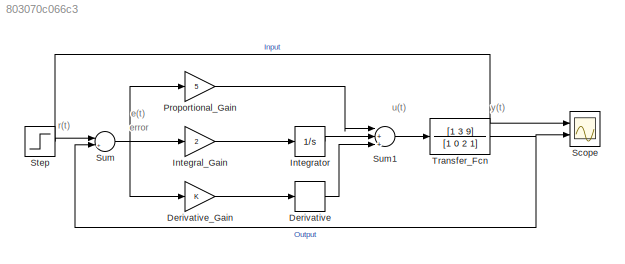
MODEL slx_803070c066c3
KIND model
BLOCK [Derivative] Derivative
BLOCK [Gain] Derivative_Gain
  OutDataTypeStr = Inherit: Inherit via internal rule
  ParamDataTypeStr = Inherit: Inherit via internal rule
  SaturateOnIntegerOverflow = off
BLOCK [Gain] Integral_Gain
  Gain = 2
  OutDataTypeStr = Inherit: Inherit via internal rule
  ParamDataTypeStr = Inherit: Inherit via internal rule
  SaturateOnIntegerOverflow = off
BLOCK [Integrator] Integrator
  Ports = [1, 1]
BLOCK [Gain] Proportional_Gain
  Gain = 5
  OutDataTypeStr = Inherit: Inherit via internal rule
  ParamDataTypeStr = Inherit: Inherit via internal rule
  SaturateOnIntegerOverflow = off
BLOCK [Scope] Scope
  DataFormat = StructureWithTime
  Floating = off
  LegendLocations = 0.91552     0.91992    0.062883    0.028319\n0.88407     0.45334    0.069018    0.028319
  LimitDataPoints = off
  NumInputPorts = 2
  Ports = [2]
  SampleTime = 0
  SaveName = Data
  SaveToWorkspace = on
  ShowLegends = on
  TimeRange = 30
  YMax = 1.2~1.2
  YMin = -0.2~-0.2
  ZoomMode = yonly
BLOCK [Step] Step
  SampleTime = 0
BLOCK [Sum] Sum
  InputSameDT = off
  Inputs = |+-
  OutDataTypeStr = Inherit: Inherit via internal rule
  Ports = [2, 1]
  SaturateOnIntegerOverflow = off
BLOCK [Sum] Sum1
  InputSameDT = off
  Inputs = |+++
  OutDataTypeStr = Inherit: Inherit via internal rule
  Ports = [3, 1]
  SaturateOnIntegerOverflow = off
BLOCK [TransferFcn] Transfer_Fcn
  Denominator = [1 0 2 1]
  Numerator = [1 3 9]
ANNOTATION (root): e(t)
ANNOTATION (root): error
ANNOTATION (root): r(t)
ANNOTATION (root): u(t)
ANNOTATION (root): y(t)
LINE Derivative:1 -> Sum1:3
LINE Derivative_Gain:1 -> Derivative:1
LINE Integral_Gain:1 -> Integrator:1
LINE Integrator:1 -> Sum1:2
LINE Proportional_Gain:1 -> Sum1:1
NET Step:1 -> Scope:1, Sum:1
LINE Sum1:1 -> Transfer_Fcn:1
NET Sum:1 -> Derivative_Gain:1, Integral_Gain:1, Proportional_Gain:1
NET Transfer_Fcn:1 -> Scope:2, Sum:2
note: NET lines group one-source signal fan-out (src -> all destinations, sorted); 1:1 wires keep LINE
